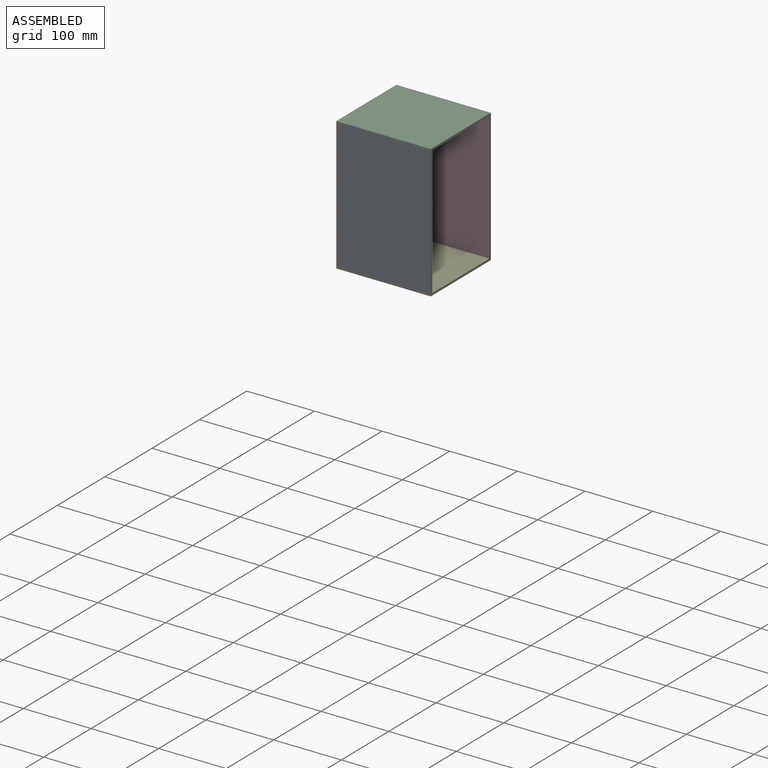
[diagram: assembled view]
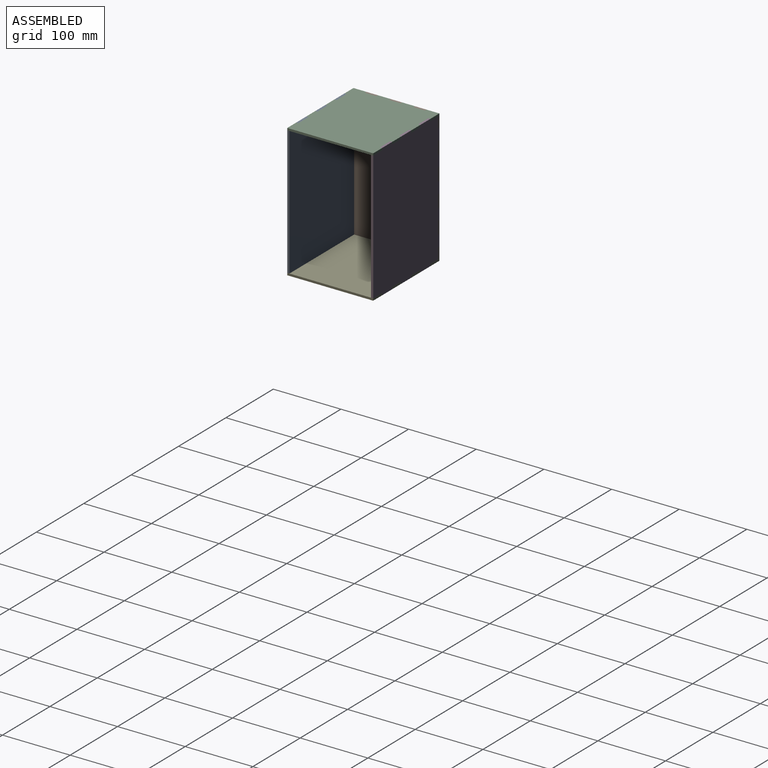
[diagram: assembled view, second angle]
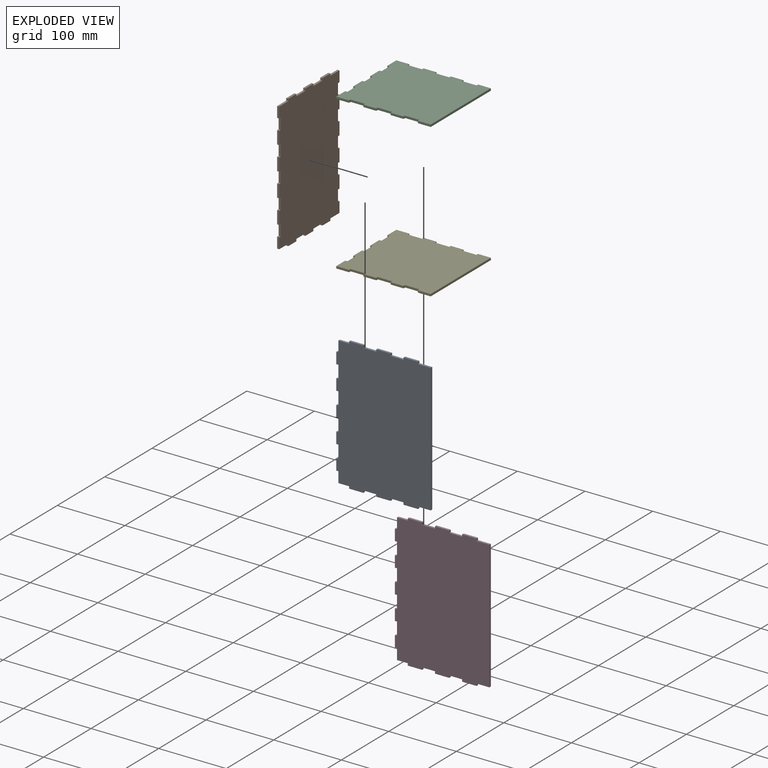
[diagram: exploded view]
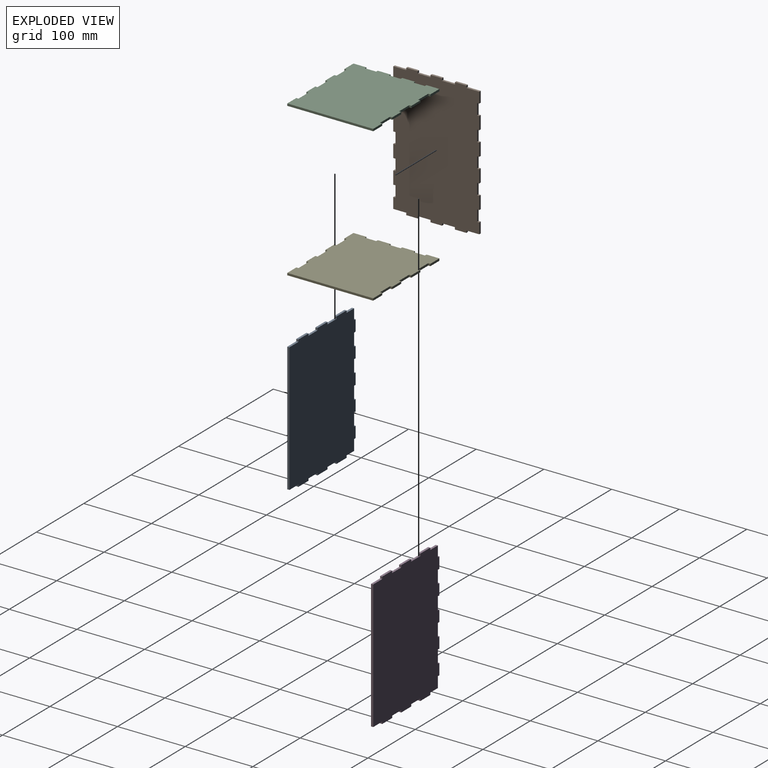
[diagram: exploded view, second angle]
ASSEMBLY  parts=5 mates=4
PART A: 50 faces, bbox 139.7x3.2x196.9 mm
  f0: plane 16.51x3.18mm, normal (-1,0,0), area 52.4mm2, adj f5,f6,f44,f48
  f1: plane 16.51x3.18mm, normal (-1,0,0), area 52.4mm2, adj f5,f6,f41,f45
  f2: plane 16.51x3.18mm, normal (-1,0,0), area 52.4mm2, adj f5,f6,f36,f42
  f3: plane 16.51x3.18mm, normal (-1,0,0), area 52.4mm2, adj f5,f6,f34,f38
  f4: plane 16.51x3.18mm, normal (-1,0,0), area 52.4mm2, adj f5,f6,f39,f47
  f5: plane 196.85x139.7mm, normal (0,-1,0), area 26673.3mm2, adj f0,f1,f2,f3,f4,f7,f8,f9
  f6: plane 196.85x139.7mm, normal (0,1,0), area 26673.3mm2, adj f0,f1,f2,f3,f4,f7,f8,f9
  f7: plane 21.17x3.18mm, normal (0,0,1), area 67.2mm2, adj f5,f6,f19,f33
  f8: plane 21.17x3.18mm, normal (0,0,1), area 67.2mm2, adj f5,f6,f21,f31
  f9: plane 21.17x3.18mm, normal (0,0,1), area 67.2mm2, adj f5,f6,f16,f18
  f10: plane 21.17x3.18mm, normal (0,0,-1), area 67.2mm2, adj f5,f6,f27,f30
  f11: plane 21.17x3.18mm, normal (0,0,-1), area 67.2mm2, adj f5,f6,f24,f26
  f12: plane 21.17x3.18mm, normal (0,0,-1), area 67.2mm2, adj f5,f6,f15,f23
  f13: plane 190.5x3.18mm, normal (1,0,0), area 604.8mm2, adj f5,f6,f17,f29
  f14: plane 15.88x3.18mm, normal (0,0,-1), area 50.4mm2, adj f5,f6,f15,f37
  f15: plane 3.18x3.18mm, normal (-1,0,0), area 10.1mm2, adj f5,f6,f12,f14
  f16: plane 3.18x3.18mm, normal (1,0,0), area 10.1mm2, adj f5,f6,f9,f17
  f17: plane 19.05x3.18mm, normal (0,0,1), area 60.5mm2, adj f5,f6,f13,f16
  f18: plane 3.18x3.18mm, normal (-1,0,0), area 10.1mm2, adj f5,f6,f9,f20
  f19: plane 3.18x3.18mm, normal (1,0,0), area 10.1mm2, adj f5,f6,f7,f20
  f20: plane 19.05x3.18mm, normal (0,0,1), area 60.5mm2, adj f5,f6,f18,f19
  f21: plane 3.18x3.18mm, normal (-1,0,0), area 10.1mm2, adj f5,f6,f8,f22
  f22: plane 15.88x3.18mm, normal (0,0,1), area 50.4mm2, adj f5,f6,f21,f35
  f23: plane 3.18x3.18mm, normal (1,0,0), area 10.1mm2, adj f5,f6,f12,f25
  f24: plane 3.18x3.18mm, normal (-1,0,0), area 10.1mm2, adj f5,f6,f11,f25
  f25: plane 19.05x3.18mm, normal (0,0,-1), area 60.5mm2, adj f5,f6,f23,f24
  f26: plane 3.18x3.18mm, normal (1,0,0), area 10.1mm2, adj f5,f6,f11,f28
  f27: plane 3.18x3.18mm, normal (-1,0,0), area 10.1mm2, adj f5,f6,f10,f28
  f28: plane 19.05x3.18mm, normal (0,0,-1), area 60.5mm2, adj f5,f6,f26,f27
  f29: plane 19.05x3.18mm, normal (0,0,-1), area 60.5mm2, adj f5,f6,f13,f30
  f30: plane 3.18x3.18mm, normal (1,0,0), area 10.1mm2, adj f5,f6,f10,f29
  f31: plane 3.18x3.18mm, normal (1,0,0), area 10.1mm2, adj f5,f6,f8,f32
  f32: plane 19.05x3.18mm, normal (0,0,1), area 60.5mm2, adj f5,f6,f31,f33
  f33: plane 3.18x3.18mm, normal (-1,0,0), area 10.1mm2, adj f5,f6,f7,f32
  f34: plane 3.18x3.18mm, normal (0,0,1), area 10.1mm2, adj f3,f5,f6,f35
  f35: plane 15.88x3.18mm, normal (-1,0,0), area 50.4mm2, adj f5,f6,f22,f34
  f36: plane 3.18x3.18mm, normal (0,0,-1), area 10.1mm2, adj f2,f5,f6,f37
  f37: plane 15.88x3.18mm, normal (-1,0,0), area 50.4mm2, adj f5,f6,f14,f36
  f38: plane 3.18x3.18mm, normal (0,0,-1), area 10.1mm2, adj f3,f5,f6,f40
  f39: plane 3.18x3.18mm, normal (0,0,1), area 10.1mm2, adj f4,f5,f6,f40
  f40: plane 19.05x3.18mm, normal (-1,0,0), area 60.5mm2, adj f5,f6,f38,f39
  f41: plane 3.18x3.18mm, normal (0,0,-1), area 10.1mm2, adj f1,f5,f6,f43
  f42: plane 3.18x3.18mm, normal (0,0,1), area 10.1mm2, adj f2,f5,f6,f43
  f43: plane 19.05x3.18mm, normal (-1,0,0), area 60.5mm2, adj f5,f6,f41,f42
  f44: plane 3.18x3.18mm, normal (0,0,-1), area 10.1mm2, adj f0,f5,f6,f46
  f45: plane 3.18x3.18mm, normal (0,0,1), area 10.1mm2, adj f1,f5,f6,f46
  f46: plane 19.05x3.18mm, normal (-1,0,0), area 60.5mm2, adj f5,f6,f44,f45
  f47: plane 3.18x3.18mm, normal (0,0,-1), area 10.1mm2, adj f4,f5,f6,f49
  f48: plane 3.18x3.18mm, normal (0,0,1), area 10.1mm2, adj f0,f5,f6,f49
  f49: plane 19.05x3.18mm, normal (-1,0,0), area 60.5mm2, adj f5,f6,f47,f48
PART B: 70 faces, bbox 3.2x127x196.9 mm
  f0: plane 19.05x3.18mm, normal (0,-1,0), area 60.5mm2, adj f10,f11,f66,f67
  f1: plane 19.05x3.18mm, normal (0,-1,0), area 60.5mm2, adj f10,f11,f63,f64
  f2: plane 19.05x3.18mm, normal (0,-1,0), area 60.5mm2, adj f10,f11,f60,f61
  f3: plane 15.88x3.18mm, normal (0,-1,0), area 50.4mm2, adj f10,f11,f23,f58
  f4: plane 19.05x3.18mm, normal (0,-1,0), area 60.5mm2, adj f10,f11,f41,f69
  f5: plane 19.05x3.18mm, normal (0,1,0), area 60.5mm2, adj f10,f11,f53,f55
  f6: plane 19.05x3.18mm, normal (0,1,0), area 60.5mm2, adj f10,f11,f43,f52
  f7: plane 19.05x3.18mm, normal (0,1,0), area 60.5mm2, adj f10,f11,f47,f51
  f8: plane 15.88x3.18mm, normal (0,1,0), area 50.4mm2, adj f10,f11,f25,f46
  f9: plane 19.05x3.18mm, normal (0,1,0), area 60.5mm2, adj f10,f11,f45,f49
  f10: plane 196.85x127mm, normal (1,0,0), area 23991.9mm2, adj f0,f1,f2,f3,f4,f5,f6,f7
  f11: plane 196.85x127mm, normal (-1,0,0), area 23991.9mm2, adj f0,f1,f2,f3,f4,f5,f6,f7
  f12: plane 16.93x3.18mm, normal (0,0,1), area 53.8mm2, adj f10,f11,f34,f35
  f13: plane 16.93x3.18mm, normal (0,0,1), area 53.8mm2, adj f10,f11,f31,f32
  f14: plane 16.93x3.18mm, normal (0,0,1), area 53.8mm2, adj f10,f11,f21,f29
  f15: plane 15.88x3.18mm, normal (0,-1,0), area 50.4mm2, adj f10,f11,f20,f40
  f16: plane 16.93x3.18mm, normal (0,0,-1), area 53.8mm2, adj f10,f11,f24,f37
  f17: plane 16.93x3.18mm, normal (0,0,-1), area 53.8mm2, adj f10,f11,f27,f39
  f18: plane 16.93x3.18mm, normal (0,0,-1), area 53.8mm2, adj f10,f11,f22,f26
  f19: plane 15.88x3.18mm, normal (0,1,0), area 50.4mm2, adj f10,f11,f36,f56
  f20: plane 19.05x3.18mm, normal (0,0,1), area 60.5mm2, adj f10,f11,f15,f21
  f21: plane 3.18x3.18mm, normal (0,-1,0), area 10.1mm2, adj f10,f11,f14,f20
  f22: plane 3.18x3.18mm, normal (0,-1,0), area 10.1mm2, adj f10,f11,f18,f23
  f23: plane 19.05x3.18mm, normal (0,0,-1), area 60.5mm2, adj f3,f10,f11,f22
  f24: plane 3.18x3.18mm, normal (0,1,0), area 10.1mm2, adj f10,f11,f16,f25
  f25: plane 19.05x3.18mm, normal (0,0,-1), area 60.5mm2, adj f8,f10,f11,f24
  f26: plane 3.18x3.18mm, normal (0,1,0), area 10.1mm2, adj f10,f11,f18,f28
  f27: plane 3.18x3.18mm, normal (0,-1,0), area 10.1mm2, adj f10,f11,f17,f28
  f28: plane 19.05x3.18mm, normal (0,0,-1), area 60.5mm2, adj f10,f11,f26,f27
  f29: plane 3.18x3.18mm, normal (0,1,0), area 10.1mm2, adj f10,f11,f14,f30
  f30: plane 19.05x3.18mm, normal (0,0,1), area 60.5mm2, adj f10,f11,f29,f31
  f31: plane 3.18x3.18mm, normal (0,-1,0), area 10.1mm2, adj f10,f11,f13,f30
  f32: plane 3.18x3.18mm, normal (0,1,0), area 10.1mm2, adj f10,f11,f13,f33
  f33: plane 19.05x3.18mm, normal (0,0,1), area 60.5mm2, adj f10,f11,f32,f34
  f34: plane 3.18x3.18mm, normal (0,-1,0), area 10.1mm2, adj f10,f11,f12,f33
  f35: plane 3.18x3.18mm, normal (0,1,0), area 10.1mm2, adj f10,f11,f12,f36
  f36: plane 19.05x3.18mm, normal (0,0,1), area 60.5mm2, adj f10,f11,f19,f35
  f37: plane 3.18x3.18mm, normal (0,-1,0), area 10.1mm2, adj f10,f11,f16,f38
  f38: plane 19.05x3.18mm, normal (0,0,-1), area 60.5mm2, adj f10,f11,f37,f39
  f39: plane 3.18x3.18mm, normal (0,1,0), area 10.1mm2, adj f10,f11,f17,f38
  f40: plane 3.18x3.18mm, normal (0,0,-1), area 10.1mm2, adj f10,f11,f15,f42
  f41: plane 3.18x3.18mm, normal (0,0,1), area 10.1mm2, adj f4,f10,f11,f42
  f42: plane 16.51x3.18mm, normal (0,-1,0), area 52.4mm2, adj f10,f11,f40,f41
  f43: plane 3.18x3.18mm, normal (0,0,-1), area 10.1mm2, adj f6,f10,f11,f44
  f44: plane 16.51x3.18mm, normal (0,1,0), area 52.4mm2, adj f10,f11,f43,f45
  f45: plane 3.18x3.18mm, normal (0,0,1), area 10.1mm2, adj f9,f10,f11,f44
  f46: plane 3.18x3.18mm, normal (0,0,1), area 10.1mm2, adj f8,f10,f11,f48
  f47: plane 3.18x3.18mm, normal (0,0,-1), area 10.1mm2, adj f7,f10,f11,f48
  f48: plane 16.51x3.18mm, normal (0,1,0), area 52.4mm2, adj f10,f11,f46,f47
  f49: plane 3.18x3.18mm, normal (0,0,-1), area 10.1mm2, adj f9,f10,f11,f50
  f50: plane 16.51x3.18mm, normal (0,1,0), area 52.4mm2, adj f10,f11,f49,f51
  f51: plane 3.18x3.18mm, normal (0,0,1), area 10.1mm2, adj f7,f10,f11,f50
  f52: plane 3.18x3.18mm, normal (0,0,1), area 10.1mm2, adj f6,f10,f11,f54
  f53: plane 3.18x3.18mm, normal (0,0,-1), area 10.1mm2, adj f5,f10,f11,f54
  f54: plane 16.51x3.18mm, normal (0,1,0), area 52.4mm2, adj f10,f11,f52,f53
  f55: plane 3.18x3.18mm, normal (0,0,1), area 10.1mm2, adj f5,f10,f11,f57
  f56: plane 3.18x3.18mm, normal (0,0,-1), area 10.1mm2, adj f10,f11,f19,f57
  f57: plane 16.51x3.18mm, normal (0,1,0), area 52.4mm2, adj f10,f11,f55,f56
  f58: plane 3.18x3.18mm, normal (0,0,1), area 10.1mm2, adj f3,f10,f11,f59
  f59: plane 16.51x3.18mm, normal (0,-1,0), area 52.4mm2, adj f10,f11,f58,f60
  f60: plane 3.18x3.18mm, normal (0,0,-1), area 10.1mm2, adj f2,f10,f11,f59
  f61: plane 3.18x3.18mm, normal (0,0,1), area 10.1mm2, adj f2,f10,f11,f62
  f62: plane 16.51x3.18mm, normal (0,-1,0), area 52.4mm2, adj f10,f11,f61,f63
  f63: plane 3.18x3.18mm, normal (0,0,-1), area 10.1mm2, adj f1,f10,f11,f62
  f64: plane 3.18x3.18mm, normal (0,0,1), area 10.1mm2, adj f1,f10,f11,f65
  f65: plane 16.51x3.18mm, normal (0,-1,0), area 52.4mm2, adj f10,f11,f64,f66
  f66: plane 3.18x3.18mm, normal (0,0,-1), area 10.1mm2, adj f0,f10,f11,f65
  f67: plane 3.18x3.18mm, normal (0,0,1), area 10.1mm2, adj f0,f10,f11,f68
  f68: plane 16.51x3.18mm, normal (0,-1,0), area 52.4mm2, adj f10,f11,f67,f69
  f69: plane 3.18x3.18mm, normal (0,0,-1), area 10.1mm2, adj f4,f10,f11,f68
PART C: 42 faces, bbox 139.7x127x3.2 mm
  f0: plane 19.05x3.18mm, normal (0,1,0), area 60.5mm2, adj f6,f7,f31,f35
  f1: plane 19.05x3.18mm, normal (0,1,0), area 60.5mm2, adj f6,f7,f28,f30
  f2: plane 19.05x3.18mm, normal (0,1,0), area 60.5mm2, adj f6,f7,f14,f27
  f3: plane 19.05x3.18mm, normal (0,-1,0), area 60.5mm2, adj f6,f7,f38,f39
  f4: plane 19.05x3.18mm, normal (0,-1,0), area 60.5mm2, adj f6,f7,f14,f36
  f5: plane 19.05x3.18mm, normal (0,-1,0), area 60.5mm2, adj f6,f7,f25,f41
  f6: plane 139.7x127mm, normal (0,0,1), area 17177.4mm2, adj f0,f1,f2,f3,f4,f5,f8,f9
  f7: plane 139.7x127mm, normal (0,0,-1), area 17177.4mm2, adj f0,f1,f2,f3,f4,f5,f8,f9
  f8: plane 19.05x3.18mm, normal (-1,0,0), area 60.5mm2, adj f6,f7,f20,f22
  f9: plane 19.05x3.18mm, normal (-1,0,0), area 60.5mm2, adj f6,f7,f17,f18
  f10: plane 19.05x3.18mm, normal (-1,0,0), area 60.5mm2, adj f6,f7,f13,f15
  f11: plane 19.05x3.18mm, normal (0,1,0), area 60.5mm2, adj f6,f7,f12,f33
  f12: plane 19.05x3.18mm, normal (-1,0,0), area 60.5mm2, adj f6,f7,f11,f21
  f13: plane 19.05x3.18mm, normal (0,-1,0), area 60.5mm2, adj f6,f7,f10,f24
  f14: plane 127x3.18mm, normal (1,0,0), area 403.2mm2, adj f2,f4,f6,f7
  f15: plane 3.18x3.18mm, normal (0,1,0), area 10.1mm2, adj f6,f7,f10,f16
  f16: plane 16.93x3.18mm, normal (-1,0,0), area 53.8mm2, adj f6,f7,f15,f17
  f17: plane 3.18x3.18mm, normal (0,-1,0), area 10.1mm2, adj f6,f7,f9,f16
  f18: plane 3.18x3.18mm, normal (0,1,0), area 10.1mm2, adj f6,f7,f9,f19
  f19: plane 16.93x3.18mm, normal (-1,0,0), area 53.8mm2, adj f6,f7,f18,f20
  f20: plane 3.18x3.18mm, normal (0,-1,0), area 10.1mm2, adj f6,f7,f8,f19
  f21: plane 3.18x3.18mm, normal (0,-1,0), area 10.1mm2, adj f6,f7,f12,f23
  f22: plane 3.18x3.18mm, normal (0,1,0), area 10.1mm2, adj f6,f7,f8,f23
  f23: plane 16.93x3.18mm, normal (-1,0,0), area 53.8mm2, adj f6,f7,f21,f22
  f24: plane 3.18x3.18mm, normal (1,0,0), area 10.1mm2, adj f6,f7,f13,f26
  f25: plane 3.18x3.18mm, normal (-1,0,0), area 10.1mm2, adj f5,f6,f7,f26
  f26: plane 21.17x3.18mm, normal (0,-1,0), area 67.2mm2, adj f6,f7,f24,f25
  f27: plane 3.18x3.18mm, normal (-1,0,0), area 10.1mm2, adj f2,f6,f7,f29
  f28: plane 3.18x3.18mm, normal (1,0,0), area 10.1mm2, adj f1,f6,f7,f29
  f29: plane 21.17x3.18mm, normal (0,1,0), area 67.2mm2, adj f6,f7,f27,f28
  f30: plane 3.18x3.18mm, normal (-1,0,0), area 10.1mm2, adj f1,f6,f7,f32
  f31: plane 3.18x3.18mm, normal (1,0,0), area 10.1mm2, adj f0,f6,f7,f32
  f32: plane 21.17x3.18mm, normal (0,1,0), area 67.2mm2, adj f6,f7,f30,f31
  f33: plane 3.18x3.18mm, normal (1,0,0), area 10.1mm2, adj f6,f7,f11,f34
  f34: plane 21.17x3.18mm, normal (0,1,0), area 67.2mm2, adj f6,f7,f33,f35
  f35: plane 3.18x3.18mm, normal (-1,0,0), area 10.1mm2, adj f0,f6,f7,f34
  f36: plane 3.18x3.18mm, normal (-1,0,0), area 10.1mm2, adj f4,f6,f7,f37
  f37: plane 21.17x3.18mm, normal (0,-1,0), area 67.2mm2, adj f6,f7,f36,f38
  f38: plane 3.18x3.18mm, normal (1,0,0), area 10.1mm2, adj f3,f6,f7,f37
  f39: plane 3.18x3.18mm, normal (-1,0,0), area 10.1mm2, adj f3,f6,f7,f40
  f40: plane 21.17x3.18mm, normal (0,-1,0), area 67.2mm2, adj f6,f7,f39,f41
  f41: plane 3.18x3.18mm, normal (1,0,0), area 10.1mm2, adj f5,f6,f7,f40
PART D: same geometry as A
PART E: same geometry as C
PLACE A t=(66.68,-60.33,0)mm
PLACE B t=(-3.17,0,0)mm
PLACE C t=(66.68,0,95.25)mm
PLACE D t=(66.68,63.5,0)mm
PLACE E t=(66.68,0,-98.42)mm
MATE fastened B.f13 <-> C.f6  axis (0,0,1) through (0,0,98.42)mm
MATE fastened C.f6 <-> A.f7  axis (0,0,1) through (66.68,-60.33,98.42)mm
MATE fastened B.f17 <-> E.f7  axis (0,0,-1) through (0,0,-98.42)mm
MATE fastened C.f6 <-> D.f7  axis (0,0,1) through (66.68,60.32,98.42)mm
